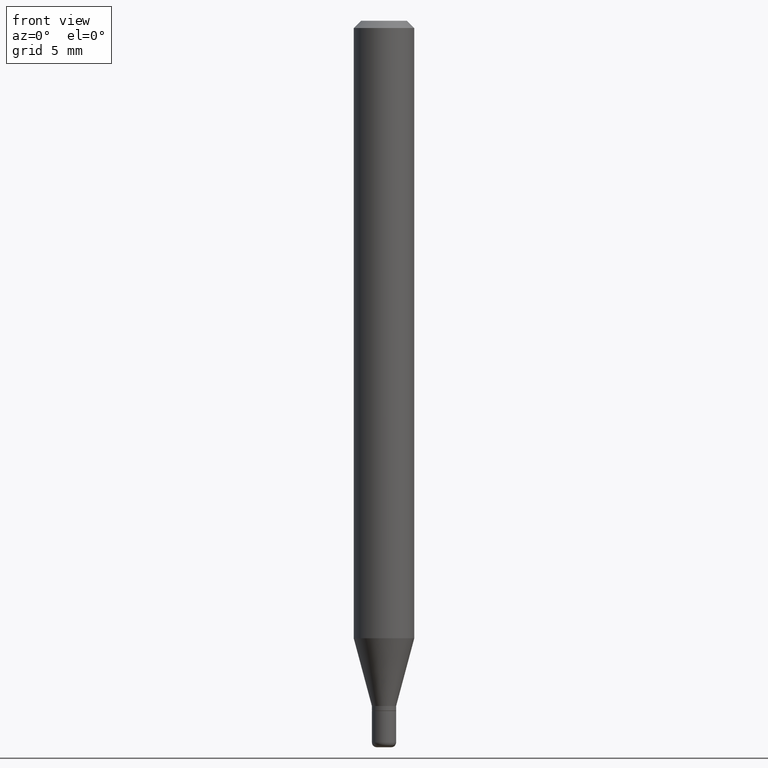
[diagram: clean part render]
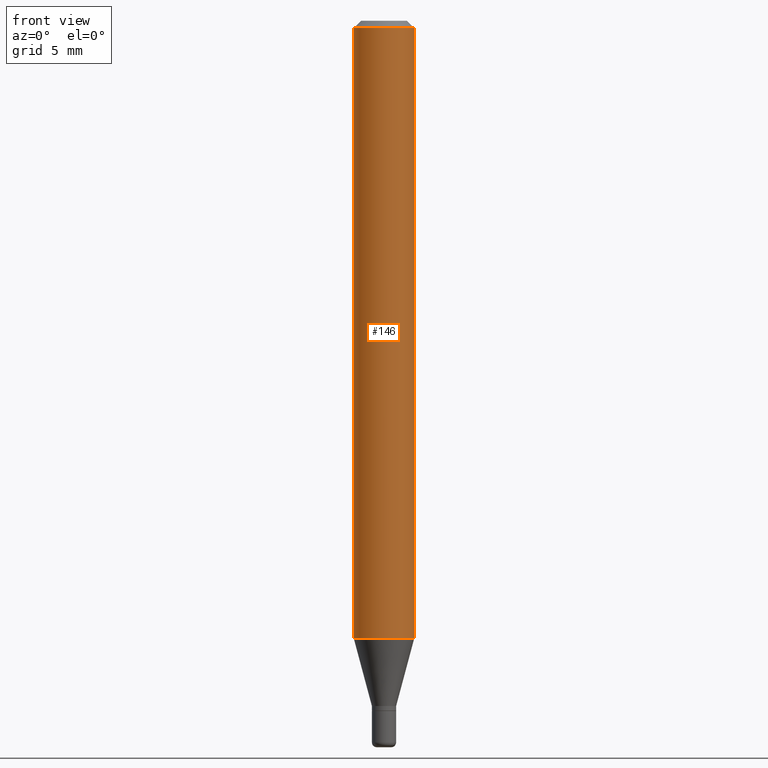
[diagram: same view with one face highlighted and labeled with its STEP entity id]
A machine part, front view. The second image highlights one B-rep face of the part: STEP entity #146.
In plain terms, the highlighted cylindrical surface (edge-blend (fillet) strip) has radius 1.5875 mm, axis along (-0, 0, 1).
Its self-contained STEP definition (entity closure, byte-faithful):
#5 = AXIS2_PLACEMENT_3D ( 'NONE', #328, #449, #320 ) ;
#10 = EDGE_CURVE ( 'NONE', #122, #473, #302, .T. ) ;
#13 = CARTESIAN_POINT ( 'NONE',  ( 3.668203209277632395E-31, -5.237222008264614861E-17, -0.01499999999999970281 ) ) ;
#19 = CIRCLE ( 'NONE', #311, 0.06250000000000000000 ) ;
#34 = DIRECTION ( 'NONE',  ( -2.445468806185136877E-29, 3.491481338843145188E-15, 1.000000000000000000 ) ) ;
#66 = EDGE_CURVE ( 'NONE', #200, #137, #472, .T. ) ;
#88 = EDGE_LOOP ( 'NONE', ( #231, #283, #518, #204 ) ) ;
#110 = CIRCLE ( 'NONE', #239, 0.06250000000000000000 ) ;
#112 = DIRECTION ( 'NONE',  ( -2.445468806185136877E-29, 3.491481338843145188E-15, 1.000000000000000000 ) ) ;
#122 = VERTEX_POINT ( 'NONE', #407 ) ;
#137 = VERTEX_POINT ( 'NONE', #506 ) ;
#146 = ADVANCED_FACE ( 'NONE', ( #269 ), #291, .T. ) ;
#153 = CARTESIAN_POINT ( 'NONE',  ( -0.06250000000000000000, 4.440892098500626162E-16, -3.074334431409316114E-30 ) ) ;
#200 = VERTEX_POINT ( 'NONE', #454 ) ;
#203 = DIRECTION ( 'NONE',  ( -2.445468806185136597E-29, 3.491481338843145583E-15, 1.000000000000000000 ) ) ;
#204 = ORIENTED_EDGE ( 'NONE', *, *, #240, .F. ) ;
#209 = CARTESIAN_POINT ( 'NONE',  ( 0.06250000000000000000, -4.888073874380378612E-16, -0.01499999999999970281 ) ) ;
#231 = ORIENTED_EDGE ( 'NONE', *, *, #66, .F. ) ;
#236 = CARTESIAN_POINT ( 'NONE',  ( 0.06250000000000000000, -4.364351673553916694E-16, 3.047610484872459871E-30 ) ) ;
#239 = AXIS2_PLACEMENT_3D ( 'NONE', #13, #255, #339 ) ;
#240 = EDGE_CURVE ( 'NONE', #137, #473, #110, .T. ) ;
#255 = DIRECTION ( 'NONE',  ( -2.445468806185136597E-29, 3.491481338843145583E-15, 1.000000000000000000 ) ) ;
#269 = FACE_OUTER_BOUND ( 'NONE', #88, .T. ) ;
#279 = VECTOR ( 'NONE', #112, 39.37007874015748143 ) ;
#283 = ORIENTED_EDGE ( 'NONE', *, *, #496, .T. ) ;
#290 = DIRECTION ( 'NONE',  ( 1.000000000000000000, -6.982962677686262766E-15, 0.000000000000000000 ) ) ;
#291 = CYLINDRICAL_SURFACE ( 'NONE', #5, 0.06250000000000000000 ) ;
#302 = LINE ( 'NONE', #236, #493 ) ;
#311 = AXIS2_PLACEMENT_3D ( 'NONE', #369, #203, #290 ) ;
#320 = DIRECTION ( 'NONE',  ( 1.000000000000000000, -6.982962677686266711E-15, 4.876176775795935793E-29 ) ) ;
#328 = CARTESIAN_POINT ( 'NONE',  ( 0.000000000000000000, 0.000000000000000000, 0.000000000000000000 ) ) ;
#339 = DIRECTION ( 'NONE',  ( 1.000000000000000000, -6.982962677686266711E-15, 0.000000000000000000 ) ) ;
#369 = CARTESIAN_POINT ( 'NONE',  ( 3.118090342014177952E-29, -4.451806628829005278E-15, -1.275048094716166869 ) ) ;
#407 = CARTESIAN_POINT ( 'NONE',  ( 0.06250000000000000000, -4.888241796184395369E-15, -1.275048094716166869 ) ) ;
#449 = DIRECTION ( 'NONE',  ( -2.445468806185136597E-29, 3.491481338843145583E-15, 1.000000000000000000 ) ) ;
#454 = CARTESIAN_POINT ( 'NONE',  ( -0.06250000000000000000, -4.007717418978941084E-15, -1.275048094716166869 ) ) ;
#472 = LINE ( 'NONE', #153, #279 ) ;
#473 = VERTEX_POINT ( 'NONE', #209 ) ;
#493 = VECTOR ( 'NONE', #34, 39.37007874015748143 ) ;
#496 = EDGE_CURVE ( 'NONE', #200, #122, #19, .T. ) ;
#506 = CARTESIAN_POINT ( 'NONE',  ( -0.06250000000000000000, -1.808000214605762576E-15, -0.01499999999999970281 ) ) ;
#518 = ORIENTED_EDGE ( 'NONE', *, *, #10, .T. ) ;